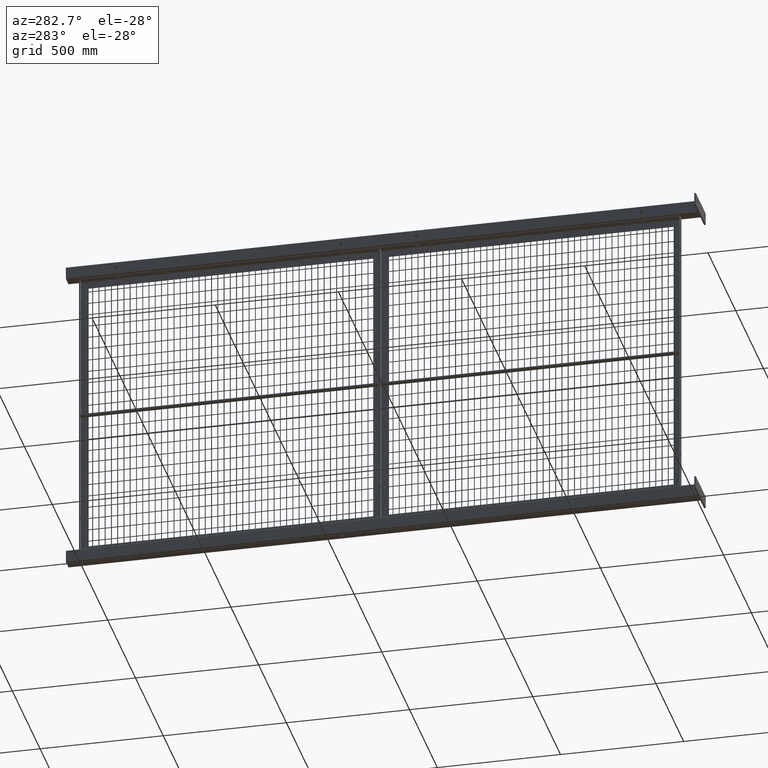
[diagram: clean part render]
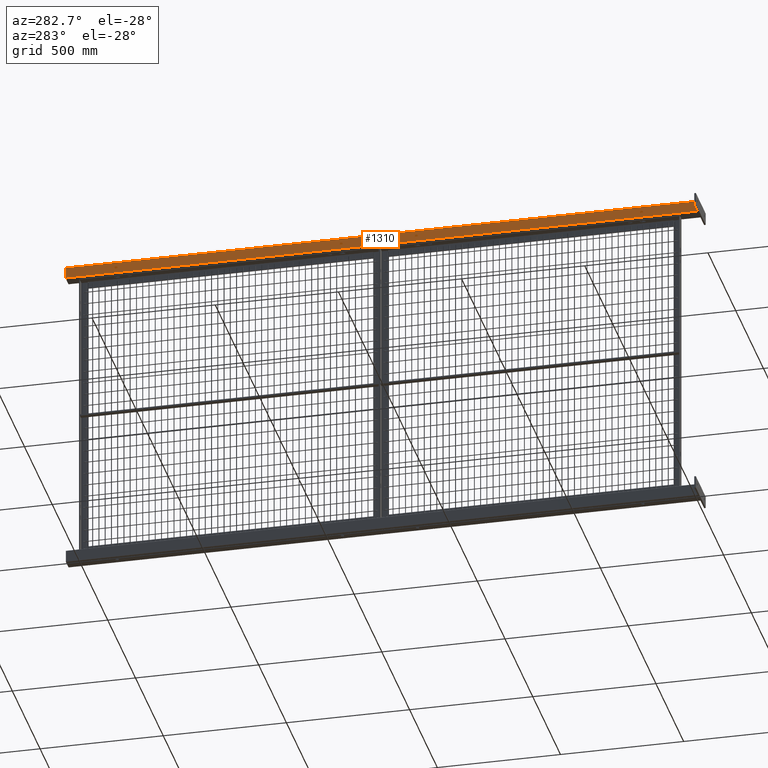
[diagram: same view with one face highlighted and labeled with its STEP entity id]
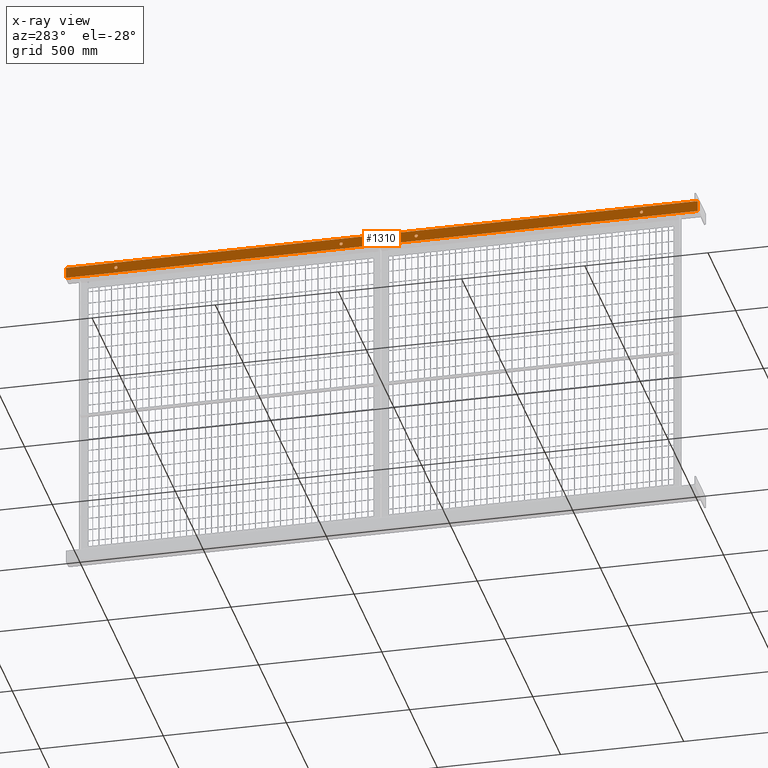
[diagram: x-ray of the same camera — body ghosted, the highlighted face saturated]
A machine part, auxiliary view. The second image highlights one B-rep face of the part: STEP entity #1310.
The next image is the same camera in x-ray: the body ghosted, the highlighted face saturated — about 0% of this face is hidden behind the body in this view.
In plain terms, the highlighted planar face has unit normal (-1, 0, 0).
Its self-contained STEP definition (entity closure, byte-faithful):
#742=CARTESIAN_POINT('',(-1.0,2.817958E-014,44.750000000000000));
#743=VERTEX_POINT('',#742);
#744=CARTESIAN_POINT('',(-1.0,2.814896E-014,45.000000000000007));
#745=DIRECTION('',(1.0,0.0,0.0));
#746=DIRECTION('',(0.0,0.0,1.0));
#747=AXIS2_PLACEMENT_3D('',#744,#745,#746);
#748=CIRCLE('',#747,0.250000000000005);
#749=EDGE_CURVE('',#743,#743,#748,.T.);
#798=CARTESIAN_POINT('',(-1.0,2.817958E-014,92.750000000000014));
#799=VERTEX_POINT('',#798);
#800=CARTESIAN_POINT('',(-1.0,2.814896E-014,93.0));
#801=DIRECTION('',(1.0,0.0,0.0));
#802=DIRECTION('',(0.0,0.0,1.0));
#803=AXIS2_PLACEMENT_3D('',#800,#801,#802);
#804=CIRCLE('',#803,0.249999999999998);
#805=EDGE_CURVE('',#799,#799,#804,.T.);
#854=CARTESIAN_POINT('',(-1.0,2.817958E-014,56.750000000000007));
#855=VERTEX_POINT('',#854);
#856=CARTESIAN_POINT('',(-1.0,2.814896E-014,57.000000000000007));
#857=DIRECTION('',(1.0,0.0,0.0));
#858=DIRECTION('',(0.0,0.0,1.0));
#859=AXIS2_PLACEMENT_3D('',#856,#857,#858);
#860=CIRCLE('',#859,0.249999999999998);
#861=EDGE_CURVE('',#855,#855,#860,.T.);
#910=CARTESIAN_POINT('',(-1.0,2.835442E-014,8.750000000000009));
#911=VERTEX_POINT('',#910);
#912=CARTESIAN_POINT('',(-1.0,2.832380E-014,9.000000000000005));
#913=DIRECTION('',(1.0,0.0,0.0));
#914=DIRECTION('',(0.0,0.0,1.0));
#915=AXIS2_PLACEMENT_3D('',#912,#913,#914);
#916=CIRCLE('',#915,0.249999999999997);
#917=EDGE_CURVE('',#911,#911,#916,.T.);
#1233=CARTESIAN_POINT('',(-1.0,-0.874999999999972,100.999999999999990));
#1234=VERTEX_POINT('',#1233);
#1242=CARTESIAN_POINT('',(-1.0,-0.874999999999972,0.0));
#1243=VERTEX_POINT('',#1242);
#1244=CARTESIAN_POINT('',(-1.0,-0.874999999999972,0.0));
#1245=DIRECTION('',(0.0,0.0,1.0));
#1246=VECTOR('',#1245,100.999999999999990);
#1247=LINE('',#1244,#1246);
#1248=EDGE_CURVE('',#1243,#1234,#1247,.T.);
#1268=CARTESIAN_POINT('',(-1.0,-0.874999999999972,0.0));
#1269=DIRECTION('',(-1.0,0.0,0.0));
#1270=DIRECTION('',(0.0,0.0,1.0));
#1271=AXIS2_PLACEMENT_3D('',#1268,#1269,#1270);
#1272=PLANE('',#1271);
#1273=CARTESIAN_POINT('',(-1.0,0.875000000000028,100.999999999999990));
#1274=VERTEX_POINT('',#1273);
#1275=CARTESIAN_POINT('',(-1.0,-0.874999999999972,100.999999999999990));
#1276=DIRECTION('',(0.0,1.0,0.0));
#1277=VECTOR('',#1276,1.750000000000000);
#1278=LINE('',#1275,#1277);
#1279=EDGE_CURVE('',#1234,#1274,#1278,.T.);
#1280=ORIENTED_EDGE('',*,*,#1279,.T.);
#1281=CARTESIAN_POINT('',(-1.0,0.875000000000028,0.0));
#1282=VERTEX_POINT('',#1281);
#1283=CARTESIAN_POINT('',(-1.0,0.875000000000028,0.0));
#1284=DIRECTION('',(0.0,0.0,1.0));
#1285=VECTOR('',#1284,100.999999999999990);
#1286=LINE('',#1283,#1285);
#1287=EDGE_CURVE('',#1282,#1274,#1286,.T.);
#1288=ORIENTED_EDGE('',*,*,#1287,.F.);
#1289=CARTESIAN_POINT('',(-1.0,-0.874999999999972,0.0));
#1290=DIRECTION('',(0.0,1.0,0.0));
#1291=VECTOR('',#1290,1.750000000000000);
#1292=LINE('',#1289,#1291);
#1293=EDGE_CURVE('',#1243,#1282,#1292,.T.);
#1294=ORIENTED_EDGE('',*,*,#1293,.F.);
#1295=ORIENTED_EDGE('',*,*,#1248,.T.);
#1296=EDGE_LOOP('',(#1280,#1288,#1294,#1295));
#1297=FACE_OUTER_BOUND('',#1296,.T.);
#1298=ORIENTED_EDGE('',*,*,#749,.T.);
#1299=EDGE_LOOP('',(#1298));
#1300=FACE_BOUND('',#1299,.T.);
#1301=ORIENTED_EDGE('',*,*,#805,.T.);
#1302=EDGE_LOOP('',(#1301));
#1303=FACE_BOUND('',#1302,.T.);
#1304=ORIENTED_EDGE('',*,*,#861,.T.);
#1305=EDGE_LOOP('',(#1304));
#1306=FACE_BOUND('',#1305,.T.);
#1307=ORIENTED_EDGE('',*,*,#917,.T.);
#1308=EDGE_LOOP('',(#1307));
#1309=FACE_BOUND('',#1308,.T.);
#1310=ADVANCED_FACE('',(#1297,#1300,#1303,#1306,#1309),#1272,.T.);